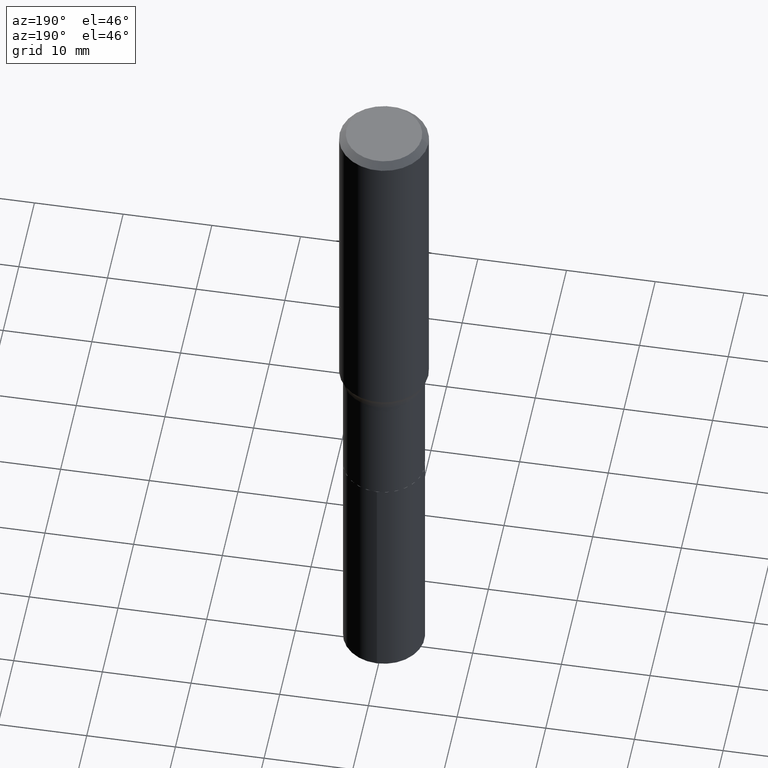
[diagram: clean part render]
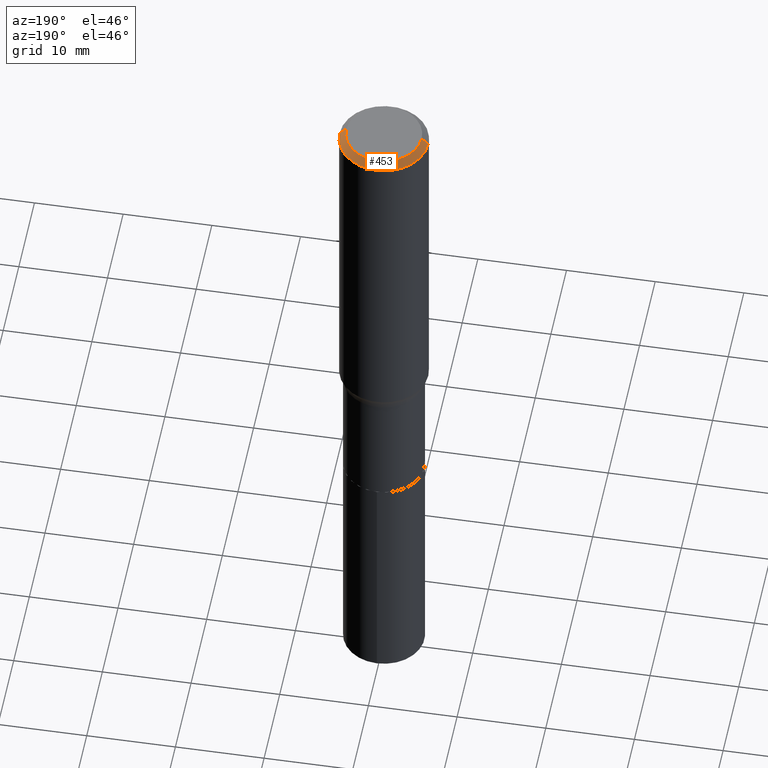
[diagram: same view with one face highlighted and labeled with its STEP entity id]
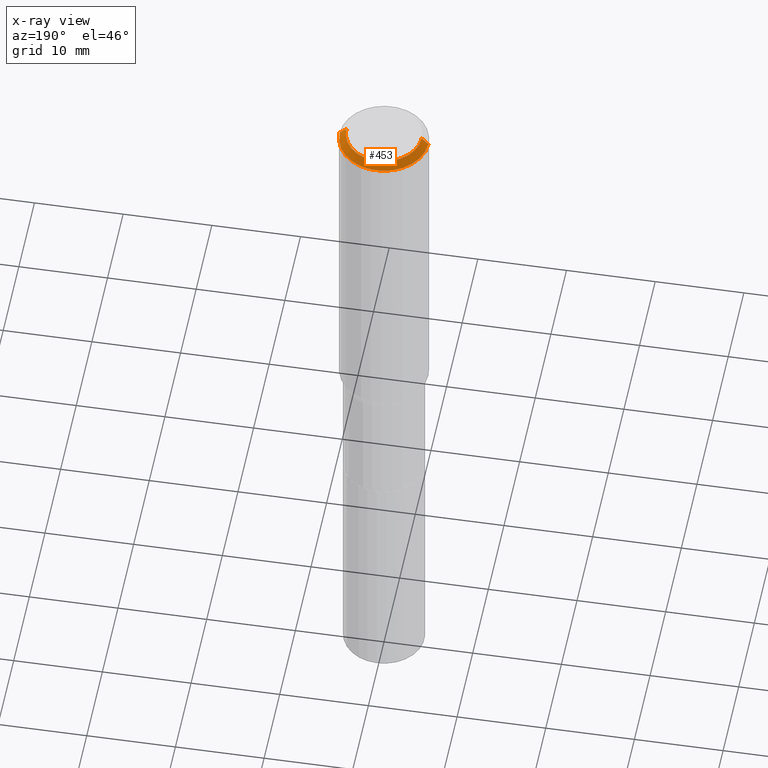
[diagram: x-ray of the same camera — body ghosted, the highlighted face saturated]
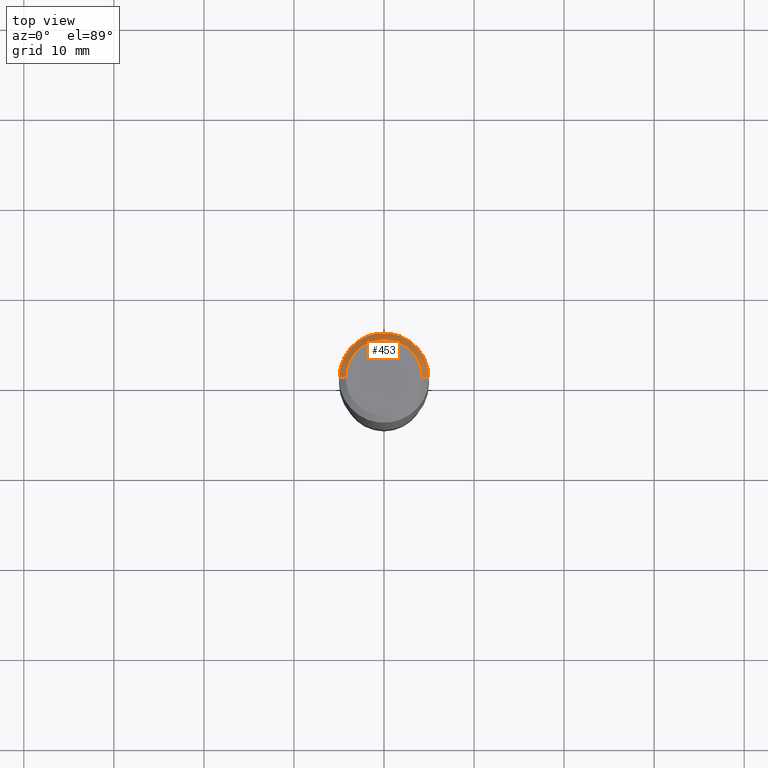
[diagram: same view with one face highlighted and labeled with its STEP entity id]
A machine part, auxiliary view. The second image highlights one B-rep face of the part: STEP entity #453.
The next image is the same camera in x-ray: the body ghosted, the highlighted face saturated — about 0% of this face is hidden behind the body in this view.
A second angle (top view) of the same face is appended — the face is thin or edge-on in the first view.
In plain terms, the highlighted conical surface has half-angle 45 deg.
Its self-contained STEP definition (entity closure, byte-faithful):
#4 = EDGE_CURVE ( 'NONE', #69, #404, #242, .T. ) ;
#17 = LINE ( 'NONE', #369, #177 ) ;
#23 = DIRECTION ( 'NONE',  ( -1.000000000000000000, 6.982962677686265922E-15, 0.000000000000000000 ) ) ;
#30 = ORIENTED_EDGE ( 'NONE', *, *, #451, .F. ) ;
#35 = VECTOR ( 'NONE', #416, 39.37007874015748854 ) ;
#38 = VERTEX_POINT ( 'NONE', #92 ) ;
#56 = FACE_OUTER_BOUND ( 'NONE', #73, .T. ) ;
#61 = DIRECTION ( 'NONE',  ( -2.445468806185136597E-29, 3.491481338843145583E-15, 1.000000000000000000 ) ) ;
#69 = VERTEX_POINT ( 'NONE', #391 ) ;
#73 = EDGE_LOOP ( 'NONE', ( #371, #415, #427, #30 ) ) ;
#81 = DIRECTION ( 'NONE',  ( 1.000000000000000000, -6.982962677686267499E-15, 4.876294436782262290E-29 ) ) ;
#86 = CONICAL_SURFACE ( 'NONE', #91, 0.1968500000000000250, 0.7853981633974456145 ) ;
#91 = AXIS2_PLACEMENT_3D ( 'NONE', #347, #449, #23 ) ;
#92 = CARTESIAN_POINT ( 'NONE',  ( -0.1968500000000000250, -1.249116074655707760E-15, -0.02952750000000018207 ) ) ;
#99 = CIRCLE ( 'NONE', #232, 0.1968500000000000250 ) ;
#119 = CARTESIAN_POINT ( 'NONE',  ( -0.1673224999999999851, 1.219954130253505263E-15, 4.096137381439757534E-18 ) ) ;
#126 = VERTEX_POINT ( 'NONE', #190 ) ;
#170 = CARTESIAN_POINT ( 'NONE',  ( -0.1968500000000000250, 1.271501487869850120E-15, -0.02952750000000018207 ) ) ;
#177 = VECTOR ( 'NONE', #412, 39.37007874015748854 ) ;
#190 = CARTESIAN_POINT ( 'NONE',  ( 0.1968500000000000250, -1.477690918335233294E-15, -0.02952750000000018207 ) ) ;
#224 = AXIS2_PLACEMENT_3D ( 'NONE', #444, #246, #81 ) ;
#232 = AXIS2_PLACEMENT_3D ( 'NONE', #368, #61, #350 ) ;
#242 = CIRCLE ( 'NONE', #224, 0.1673224999999999851 ) ;
#246 = DIRECTION ( 'NONE',  ( -2.445468806185136597E-29, 3.491481338843145583E-15, 1.000000000000000000 ) ) ;
#291 = EDGE_CURVE ( 'NONE', #69, #126, #17, .T. ) ;
#346 = LINE ( 'NONE', #170, #35 ) ;
#347 = CARTESIAN_POINT ( 'NONE',  ( 7.220858017463206858E-31, -1.030947152326916240E-16, -0.02952750000000018207 ) ) ;
#350 = DIRECTION ( 'NONE',  ( 1.000000000000000000, -6.982962677686265922E-15, 0.000000000000000000 ) ) ;
#368 = CARTESIAN_POINT ( 'NONE',  ( 7.220858017463206858E-31, -1.030947152326916240E-16, -0.02952750000000018207 ) ) ;
#369 = CARTESIAN_POINT ( 'NONE',  ( 0.1968500000000000250, -1.453583746094017706E-15, -0.02952750000000018207 ) ) ;
#371 = ORIENTED_EDGE ( 'NONE', *, *, #4, .F. ) ;
#391 = CARTESIAN_POINT ( 'NONE',  ( 0.1673224999999999851, -1.300749711163072397E-15, 4.096137381456741925E-18 ) ) ;
#404 = VERTEX_POINT ( 'NONE', #119 ) ;
#412 = DIRECTION ( 'NONE',  ( 0.7071067811865455743, -7.319954787623248157E-15, -0.7071067811865493491 ) ) ;
#415 = ORIENTED_EDGE ( 'NONE', *, *, #291, .T. ) ;
#416 = DIRECTION ( 'NONE',  ( -0.7071067811865455743, 2.468850131082236945E-15, -0.7071067811865493491 ) ) ;
#427 = ORIENTED_EDGE ( 'NONE', *, *, #428, .T. ) ;
#428 = EDGE_CURVE ( 'NONE', #126, #38, #99, .T. ) ;
#444 = CARTESIAN_POINT ( 'NONE',  ( -1.001697619218021790E-46, 1.430158722866389718E-32, 4.096137381448108366E-18 ) ) ;
#449 = DIRECTION ( 'NONE',  ( 2.445468806185136597E-29, -3.491481338843145583E-15, -1.000000000000000000 ) ) ;
#451 = EDGE_CURVE ( 'NONE', #404, #38, #346, .T. ) ;
#453 = ADVANCED_FACE ( 'NONE', ( #56 ), #86, .T. ) ;